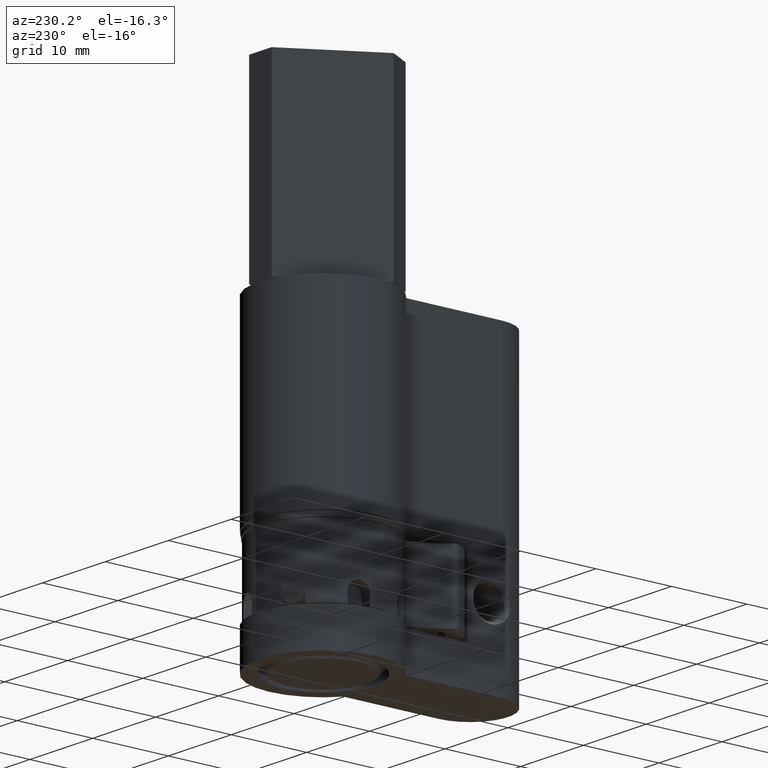
[diagram: clean part render]
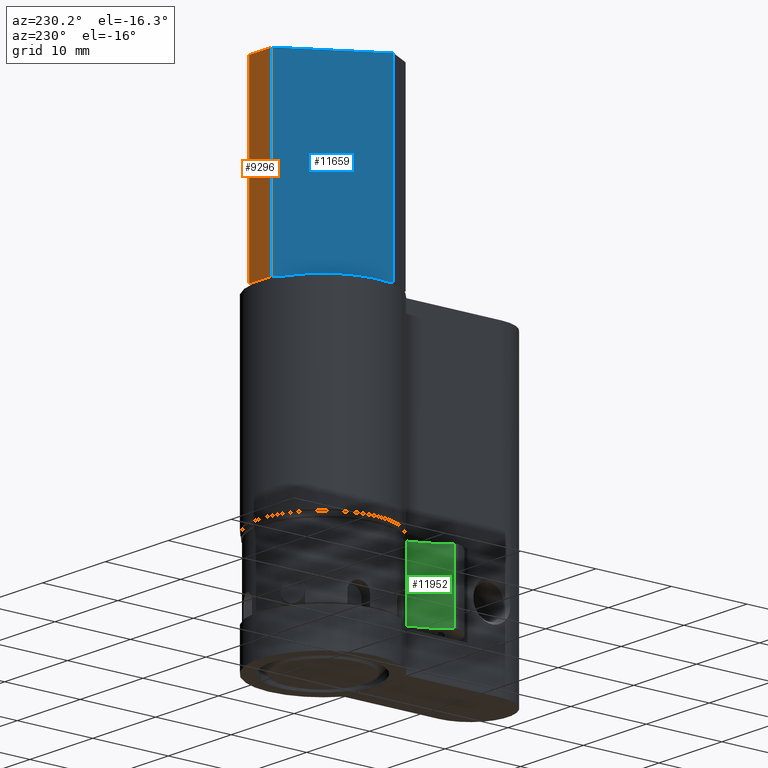
[diagram: same view with three faces highlighted in distinct colors, each labeled with its STEP entity id]
A machine part, auxiliary view with three faces highlighted in distinct colors.
Their STEP definitions:

[orange] entity #9296 — the highlighted planar face has unit normal (0, -1, 0).
#952 = DIRECTION ( 'NONE',  ( 0.0000000000000000000, -1.000000000000000000, 0.0000000000000000000 ) ) ;
#1135 = EDGE_CURVE ( 'NONE', #6120, #1674, #10703, .T. ) ;
#1497 = CARTESIAN_POINT ( 'NONE',  ( -1.789785834487832100, 8.300000000000004300, 44.75000000000000700 ) ) ;
#1598 = ORIENTED_EDGE ( 'NONE', *, *, #2565, .F. ) ;
#1674 = VERTEX_POINT ( 'NONE', #8317 ) ;
#2335 = VECTOR ( 'NONE', #7991, 1000.000000000000000 ) ;
#2341 = AXIS2_PLACEMENT_3D ( 'NONE', #5911, #952, #11533 ) ;
#2565 = EDGE_CURVE ( 'NONE', #1674, #5066, #7692, .T. ) ;
#3450 = FACE_OUTER_BOUND ( 'NONE', #13548, .T. ) ;
#3684 = CARTESIAN_POINT ( 'NONE',  ( -1.789785834487832100, 8.300000000000004300, 20.45000000000000300 ) ) ;
#4259 = VECTOR ( 'NONE', #7197, 1000.000000000000000 ) ;
#4692 = DIRECTION ( 'NONE',  ( -1.000000000000000000, -0.0000000000000000000, -0.0000000000000000000 ) ) ;
#4768 = PLANE ( 'NONE',  #2341 ) ;
#5066 = VERTEX_POINT ( 'NONE', #13697 ) ;
#5911 = CARTESIAN_POINT ( 'NONE',  ( -1.789785834487832100, 8.300000000000004300, 44.75000000000000700 ) ) ;
#6120 = VERTEX_POINT ( 'NONE', #8568 ) ;
#6216 = CARTESIAN_POINT ( 'NONE',  ( 1.789785834487832800, 8.300000000000004300, 44.75000000000000700 ) ) ;
#6256 = DIRECTION ( 'NONE',  ( -0.0000000000000000000, -0.0000000000000000000, -1.000000000000000000 ) ) ;
#7197 = DIRECTION ( 'NONE',  ( -1.000000000000000000, -0.0000000000000000000, -0.0000000000000000000 ) ) ;
#7442 = LINE ( 'NONE', #6216, #7621 ) ;
#7621 = VECTOR ( 'NONE', #6256, 1000.000000000000000 ) ;
#7692 = LINE ( 'NONE', #7898, #2335 ) ;
#7885 = VECTOR ( 'NONE', #4692, 1000.000000000000000 ) ;
#7898 = CARTESIAN_POINT ( 'NONE',  ( -1.789785834487832100, 8.300000000000004300, 44.75000000000000700 ) ) ;
#7991 = DIRECTION ( 'NONE',  ( -0.0000000000000000000, -0.0000000000000000000, -1.000000000000000000 ) ) ;
#8317 = CARTESIAN_POINT ( 'NONE',  ( -1.789785834487832100, 8.300000000000004300, 44.75000000000000700 ) ) ;
#8568 = CARTESIAN_POINT ( 'NONE',  ( 1.789785834487832800, 8.300000000000004300, 44.75000000000000700 ) ) ;
#9296 = ADVANCED_FACE ( 'NONE', ( #3450 ), #4768, .F. ) ;
#9593 = ORIENTED_EDGE ( 'NONE', *, *, #9890, .T. ) ;
#9851 = ORIENTED_EDGE ( 'NONE', *, *, #1135, .F. ) ;
#9890 = EDGE_CURVE ( 'NONE', #6120, #10081, #7442, .T. ) ;
#10028 = CARTESIAN_POINT ( 'NONE',  ( 1.789785834487832800, 8.300000000000004300, 20.45000000000000300 ) ) ;
#10081 = VERTEX_POINT ( 'NONE', #10028 ) ;
#10225 = EDGE_CURVE ( 'NONE', #10081, #5066, #11954, .T. ) ;
#10703 = LINE ( 'NONE', #1497, #7885 ) ;
#11533 = DIRECTION ( 'NONE',  ( 0.0000000000000000000, -0.0000000000000000000, -1.000000000000000000 ) ) ;
#11732 = ORIENTED_EDGE ( 'NONE', *, *, #10225, .T. ) ;
#11954 = LINE ( 'NONE', #3684, #4259 ) ;
#13548 = EDGE_LOOP ( 'NONE', ( #9593, #11732, #1598, #9851 ) ) ;
#13697 = CARTESIAN_POINT ( 'NONE',  ( -1.789785834487832100, 8.300000000000004300, 20.45000000000000300 ) ) ;

[blue] entity #11659 — the highlighted planar face has unit normal (0.866, -0.5, 0).
#483 = VERTEX_POINT ( 'NONE', #6525 ) ;
#640 = VECTOR ( 'NONE', #8666, 1000.000000000000000 ) ;
#1074 = FACE_OUTER_BOUND ( 'NONE', #1709, .T. ) ;
#1128 = ORIENTED_EDGE ( 'NONE', *, *, #4126, .F. ) ;
#1404 = ORIENTED_EDGE ( 'NONE', *, *, #2942, .T. ) ;
#1489 = LINE ( 'NONE', #6198, #7834 ) ;
#1612 = LINE ( 'NONE', #4420, #9946 ) ;
#1662 = LINE ( 'NONE', #4432, #9998 ) ;
#1674 = VERTEX_POINT ( 'NONE', #8317 ) ;
#1709 = EDGE_LOOP ( 'NONE', ( #3907, #1128, #8595, #12445, #4576, #13430, #12306, #1404 ) ) ;
#2086 = CARTESIAN_POINT ( 'NONE',  ( -4.936344801571293000, 2.849999999999996500, 20.45000000000000300 ) ) ;
#2143 = DIRECTION ( 'NONE',  ( -0.5000000000000002200, -0.8660254037844384900, 0.0000000000000000000 ) ) ;
#2180 = CARTESIAN_POINT ( 'NONE',  ( -3.716713709806242600, 4.962463017427764600, 20.45000000000000300 ) ) ;
#2335 = VECTOR ( 'NONE', #7991, 1000.000000000000000 ) ;
#2565 = EDGE_CURVE ( 'NONE', #1674, #5066, #7692, .T. ) ;
#2777 = VERTEX_POINT ( 'NONE', #6446 ) ;
#2921 = DIRECTION ( 'NONE',  ( 0.5000000000000002200, 0.8660254037844384900, 0.0000000000000000000 ) ) ;
#2939 = CARTESIAN_POINT ( 'NONE',  ( -3.716713709806242600, 4.962463017427764600, 20.45000000000000300 ) ) ;
#2942 = EDGE_CURVE ( 'NONE', #4157, #6878, #8672, .T. ) ;
#3266 = LINE ( 'NONE', #8340, #10777 ) ;
#3529 = EDGE_CURVE ( 'NONE', #7379, #4157, #1662, .T. ) ;
#3866 = EDGE_CURVE ( 'NONE', #4971, #7379, #11152, .T. ) ;
#3907 = ORIENTED_EDGE ( 'NONE', *, *, #7368, .T. ) ;
#4034 = DIRECTION ( 'NONE',  ( 0.8660254037844386000, -0.5000000000000003300, 0.0000000000000000000 ) ) ;
#4126 = EDGE_CURVE ( 'NONE', #483, #2777, #1489, .T. ) ;
#4157 = VERTEX_POINT ( 'NONE', #9222 ) ;
#4420 = CARTESIAN_POINT ( 'NONE',  ( -3.175663115405392000, 5.899590136395384700, 20.45000000000000300 ) ) ;
#4432 = CARTESIAN_POINT ( 'NONE',  ( -4.936344801571293000, 2.849999999999996500, 19.75000000000000400 ) ) ;
#4576 = ORIENTED_EDGE ( 'NONE', *, *, #9976, .T. ) ;
#4971 = VERTEX_POINT ( 'NONE', #2939 ) ;
#5066 = VERTEX_POINT ( 'NONE', #13697 ) ;
#5519 = DIRECTION ( 'NONE',  ( -0.5000000000000001100, -0.8660254037844386000, 0.0000000000000000000 ) ) ;
#5798 = CARTESIAN_POINT ( 'NONE',  ( -3.716713709806242600, 4.962463017427764600, 19.75000000000000400 ) ) ;
#6160 = PLANE ( 'NONE',  #11128 ) ;
#6198 = CARTESIAN_POINT ( 'NONE',  ( -8.082903768654755800, -2.600000000000001900, 44.75000000000000700 ) ) ;
#6446 = CARTESIAN_POINT ( 'NONE',  ( -8.082903768654755800, -2.600000000000001900, 20.45000000000000300 ) ) ;
#6525 = CARTESIAN_POINT ( 'NONE',  ( -8.082903768654755800, -2.600000000000001900, 44.75000000000000700 ) ) ;
#6827 = DIRECTION ( 'NONE',  ( -0.0000000000000000000, -0.0000000000000000000, 1.000000000000000000 ) ) ;
#6878 = VERTEX_POINT ( 'NONE', #11073 ) ;
#7368 = EDGE_CURVE ( 'NONE', #6878, #2777, #12669, .T. ) ;
#7379 = VERTEX_POINT ( 'NONE', #5798 ) ;
#7692 = LINE ( 'NONE', #7898, #2335 ) ;
#7752 = CARTESIAN_POINT ( 'NONE',  ( -6.155975893336348600, 0.7375369825722232200, 20.45000000000000300 ) ) ;
#7834 = VECTOR ( 'NONE', #13670, 1000.000000000000000 ) ;
#7898 = CARTESIAN_POINT ( 'NONE',  ( -1.789785834487832100, 8.300000000000004300, 44.75000000000000700 ) ) ;
#7991 = DIRECTION ( 'NONE',  ( -0.0000000000000000000, -0.0000000000000000000, -1.000000000000000000 ) ) ;
#8016 = VECTOR ( 'NONE', #6827, 1000.000000000000000 ) ;
#8317 = CARTESIAN_POINT ( 'NONE',  ( -1.789785834487832100, 8.300000000000004300, 44.75000000000000700 ) ) ;
#8340 = CARTESIAN_POINT ( 'NONE',  ( -4.936344801571293000, 2.849999999999996500, 44.75000000000000700 ) ) ;
#8595 = ORIENTED_EDGE ( 'NONE', *, *, #10323, .F. ) ;
#8666 = DIRECTION ( 'NONE',  ( 0.0000000000000000000, 0.0000000000000000000, -1.000000000000000000 ) ) ;
#8672 = LINE ( 'NONE', #7752, #8016 ) ;
#9222 = CARTESIAN_POINT ( 'NONE',  ( -6.155975893336348600, 0.7375369825722232200, 19.75000000000000400 ) ) ;
#9322 = CARTESIAN_POINT ( 'NONE',  ( -4.936344801571293000, 2.849999999999996500, 44.75000000000000700 ) ) ;
#9946 = VECTOR ( 'NONE', #11895, 1000.000000000000200 ) ;
#9976 = EDGE_CURVE ( 'NONE', #5066, #4971, #1612, .T. ) ;
#9998 = VECTOR ( 'NONE', #5519, 1000.000000000000000 ) ;
#10323 = EDGE_CURVE ( 'NONE', #1674, #483, #3266, .T. ) ;
#10777 = VECTOR ( 'NONE', #12464, 1000.000000000000000 ) ;
#10821 = VECTOR ( 'NONE', #2143, 1000.000000000000100 ) ;
#11073 = CARTESIAN_POINT ( 'NONE',  ( -6.155975893336348600, 0.7375369825722232200, 20.45000000000000300 ) ) ;
#11128 = AXIS2_PLACEMENT_3D ( 'NONE', #9322, #4034, #2921 ) ;
#11152 = LINE ( 'NONE', #2180, #640 ) ;
#11659 = ADVANCED_FACE ( 'NONE', ( #1074 ), #6160, .F. ) ;
#11895 = DIRECTION ( 'NONE',  ( -0.5000000000000000000, -0.8660254037844386000, -0.0000000000000000000 ) ) ;
#12306 = ORIENTED_EDGE ( 'NONE', *, *, #3529, .T. ) ;
#12445 = ORIENTED_EDGE ( 'NONE', *, *, #2565, .T. ) ;
#12464 = DIRECTION ( 'NONE',  ( -0.5000000000000001100, -0.8660254037844386000, 0.0000000000000000000 ) ) ;
#12669 = LINE ( 'NONE', #2086, #10821 ) ;
#13430 = ORIENTED_EDGE ( 'NONE', *, *, #3866, .T. ) ;
#13670 = DIRECTION ( 'NONE',  ( -0.0000000000000000000, -0.0000000000000000000, -1.000000000000000000 ) ) ;
#13697 = CARTESIAN_POINT ( 'NONE',  ( -1.789785834487832100, 8.300000000000004300, 20.45000000000000300 ) ) ;

[green] entity #11952 — the highlighted cylindrical surface (partial cylindrical patch) has radius 11 mm, axis along (-0, 0, -1).
#409 = FACE_OUTER_BOUND ( 'NONE', #11411, .T. ) ;
#540 = CARTESIAN_POINT ( 'NONE',  ( -13.49999999999999800, 5.919970150130953200, -4.500000000000000000 ) ) ;
#733 = ORIENTED_EDGE ( 'NONE', *, *, #7217, .F. ) ;
#1130 = CARTESIAN_POINT ( 'NONE',  ( -13.49999999999999800, 5.919970150130953200, 4.500000000000000000 ) ) ;
#1357 = DIRECTION ( 'NONE',  ( -0.0000000000000000000, -0.0000000000000000000, -1.000000000000000000 ) ) ;
#1508 = CARTESIAN_POINT ( 'NONE',  ( -3.217391304347828400, 2.012546649651596900, 4.500000000000000000 ) ) ;
#1819 = CYLINDRICAL_SURFACE ( 'NONE', #11213, 10.99999999999999600 ) ;
#2032 = AXIS2_PLACEMENT_3D ( 'NONE', #1130, #6517, #11655 ) ;
#2318 = VERTEX_POINT ( 'NONE', #4287 ) ;
#2592 = DIRECTION ( 'NONE',  ( -0.0000000000000000000, -0.0000000000000000000, -1.000000000000000000 ) ) ;
#2821 = LINE ( 'NONE', #3569, #8161 ) ;
#3569 = CARTESIAN_POINT ( 'NONE',  ( -2.542806042514760700, 6.889454847302063800, 4.500000000000000000 ) ) ;
#4091 = CARTESIAN_POINT ( 'NONE',  ( -2.542806042514760700, 6.889454847302063800, 4.500000000000000000 ) ) ;
#4137 = ORIENTED_EDGE ( 'NONE', *, *, #7786, .T. ) ;
#4287 = CARTESIAN_POINT ( 'NONE',  ( -2.542806042514760700, 6.889454847302063800, -4.500000000000000000 ) ) ;
#4480 = CIRCLE ( 'NONE', #2032, 10.99999999999999800 ) ;
#5274 = VECTOR ( 'NONE', #8954, 1000.000000000000000 ) ;
#5699 = ORIENTED_EDGE ( 'NONE', *, *, #8861, .F. ) ;
#5819 = VERTEX_POINT ( 'NONE', #13040 ) ;
#6413 = CARTESIAN_POINT ( 'NONE',  ( -3.217391304347828400, 2.012546649651596900, -4.500000000000000000 ) ) ;
#6517 = DIRECTION ( 'NONE',  ( -0.0000000000000000000, -0.0000000000000000000, -1.000000000000000000 ) ) ;
#6816 = AXIS2_PLACEMENT_3D ( 'NONE', #540, #13406, #10208 ) ;
#7143 = VERTEX_POINT ( 'NONE', #6413 ) ;
#7217 = EDGE_CURVE ( 'NONE', #12644, #5819, #4480, .T. ) ;
#7786 = EDGE_CURVE ( 'NONE', #2318, #7143, #10987, .T. ) ;
#8134 = LINE ( 'NONE', #1508, #5274 ) ;
#8161 = VECTOR ( 'NONE', #1357, 1000.000000000000000 ) ;
#8572 = ORIENTED_EDGE ( 'NONE', *, *, #12668, .T. ) ;
#8861 = EDGE_CURVE ( 'NONE', #5819, #7143, #8134, .T. ) ;
#8930 = CARTESIAN_POINT ( 'NONE',  ( -13.49999999999999800, 5.919970150130953200, 4.500000000000000000 ) ) ;
#8954 = DIRECTION ( 'NONE',  ( -0.0000000000000000000, -0.0000000000000000000, -1.000000000000000000 ) ) ;
#10054 = DIRECTION ( 'NONE',  ( -1.000000000000000000, 0.0000000000000000000, 0.0000000000000000000 ) ) ;
#10208 = DIRECTION ( 'NONE',  ( 1.000000000000000000, 0.0000000000000000000, 0.0000000000000000000 ) ) ;
#10987 = CIRCLE ( 'NONE', #6816, 10.99999999999999800 ) ;
#11213 = AXIS2_PLACEMENT_3D ( 'NONE', #8930, #2592, #10054 ) ;
#11411 = EDGE_LOOP ( 'NONE', ( #4137, #5699, #733, #8572 ) ) ;
#11655 = DIRECTION ( 'NONE',  ( 1.000000000000000000, 0.0000000000000000000, 0.0000000000000000000 ) ) ;
#11952 = ADVANCED_FACE ( 'NONE', ( #409 ), #1819, .F. ) ;
#12644 = VERTEX_POINT ( 'NONE', #4091 ) ;
#12668 = EDGE_CURVE ( 'NONE', #12644, #2318, #2821, .T. ) ;
#13040 = CARTESIAN_POINT ( 'NONE',  ( -3.217391304347828400, 2.012546649651596900, 4.500000000000000000 ) ) ;
#13406 = DIRECTION ( 'NONE',  ( -0.0000000000000000000, -0.0000000000000000000, -1.000000000000000000 ) ) ;